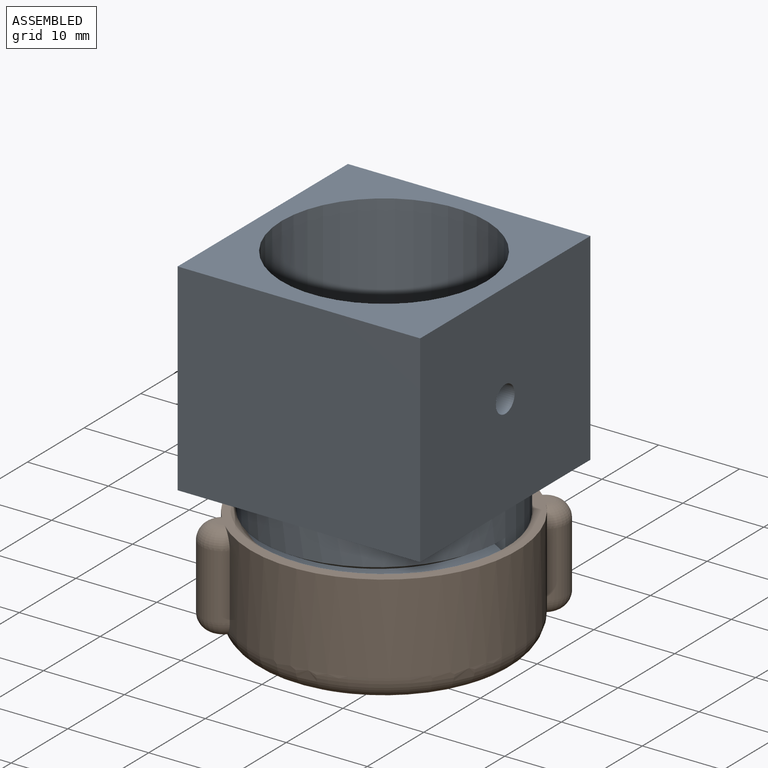
[diagram: assembled view]
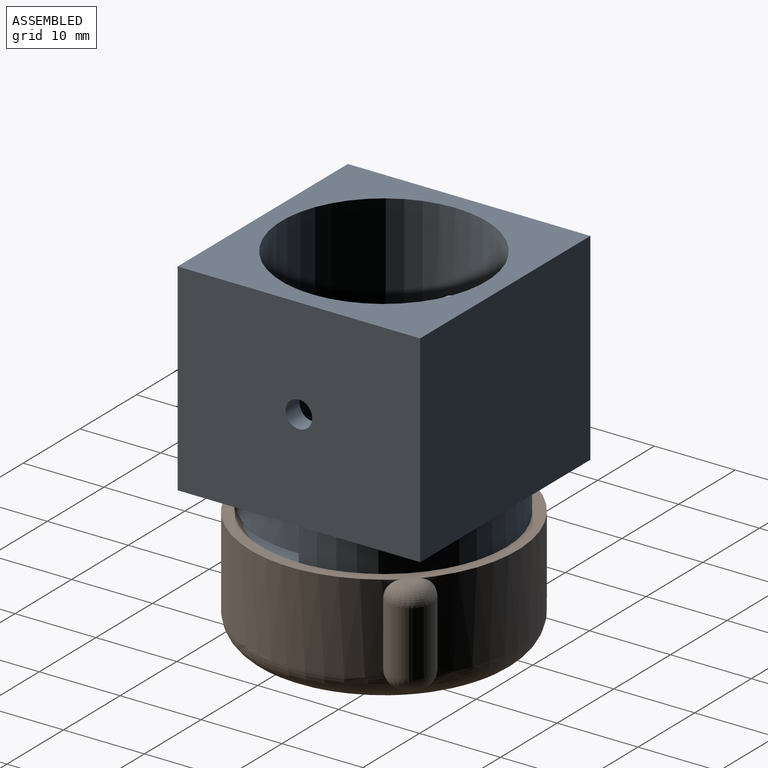
[diagram: assembled view, second angle]
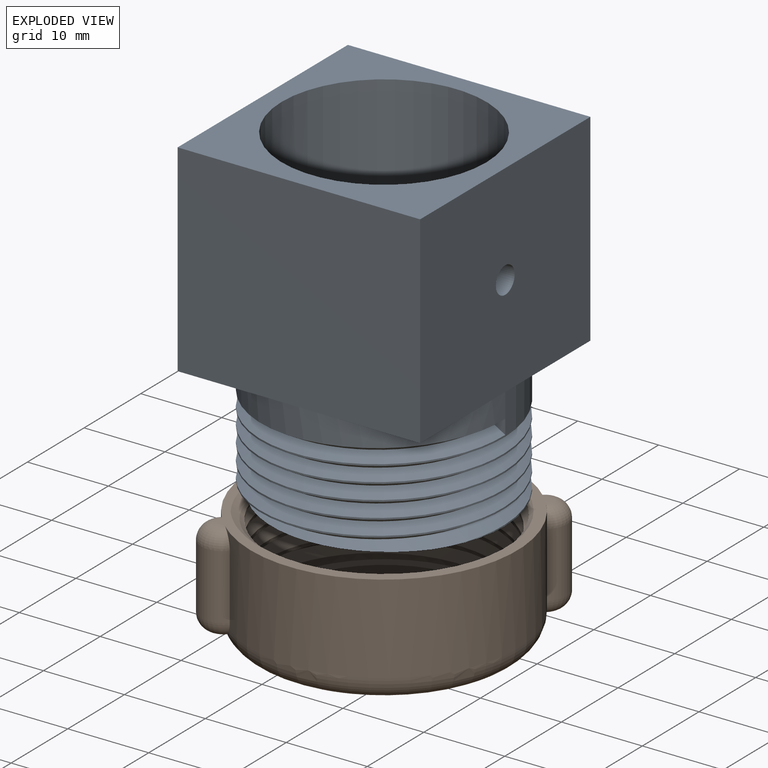
[diagram: exploded view]
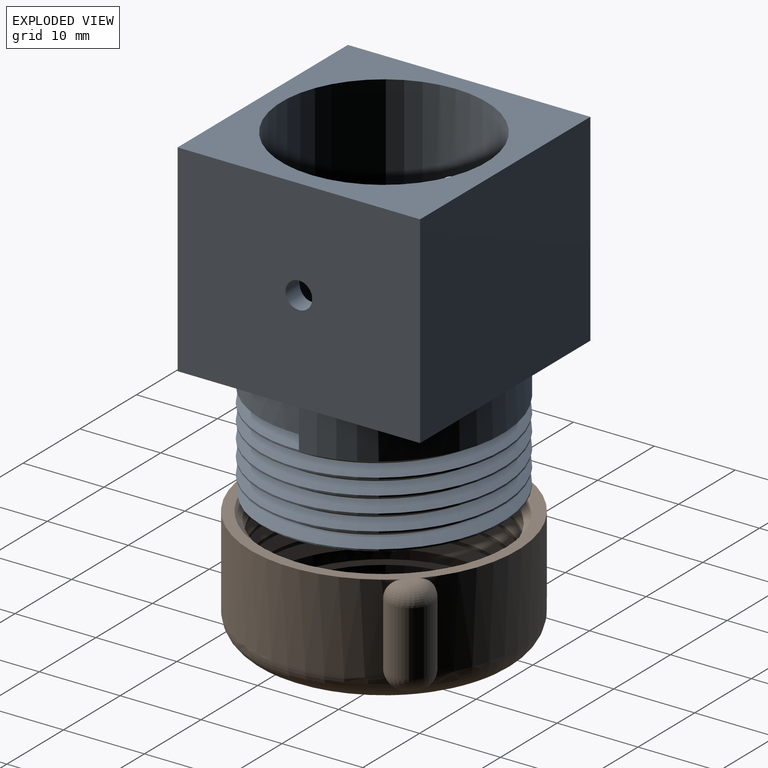
[diagram: exploded view, second angle]
ASSEMBLY  parts=2 mates=3
PART A: 23 faces, bbox 31.3x35.9x42.4 mm
  f0: cylinder r=12.65mm len=40mm, axis (0,0,-1), area 3152.2mm2, adj f16,f17,f21,f22
  f1: cylinder r=15mm len=30mm, axis (0,0,-1), area 377mm2, adj f2,f8,f9,f10,f15,f18,f20
  f2: cylinder r=15mm len=30mm, axis (0,0,-1), area 18.9mm2, adj f1,f3,f19,f20
  f3: cylinder r=15mm len=30mm, axis (0,0,-1), area 18.8mm2, adj f2,f4,f19,f20
  f4: cylinder r=15mm len=30mm, axis (0,0,-1), area 18.8mm2, adj f3,f5,f19,f20
  f5: cylinder r=15mm len=30mm, axis (0,0,-1), area 18.9mm2, adj f4,f6,f19,f20
  f6: cylinder r=15mm len=30mm, axis (0,0,-1), area 18.8mm2, adj f5,f7,f19,f20
  f7: cylinder r=15mm len=8.76mm, axis (0,0,-1), area 0.9mm2, adj f6,f17,f19
  f8: plane 15x15mm, normal (0,0,1), area 48.3mm2, adj f1,f13,f14
  f9: plane 15x15mm, normal (0,0,1), area 48.3mm2, adj f1,f12,f13
  f10: plane 15x15mm, normal (0,0,1), area 48.3mm2, adj f1,f11,f12
  f11: plane 30x25mm, normal (0,1,0), area 750mm2, adj f10,f12,f14,f15,f16
  f12: plane 30x25mm, normal (-1,0,0), area 671.5mm2, adj f9,f10,f11,f13,f16,f21
  f13: plane 30x25mm, normal (0,-1,0), area 750mm2, adj f8,f9,f12,f14,f16
  f14: plane 30x25mm, normal (1,0,0), area 741.4mm2, adj f8,f11,f13,f15,f16,f22
  f15: plane 15x15mm, normal (0,0,1), area 48.3mm2, adj f1,f11,f14
  f16: plane 30x30mm, normal (0,0,-1), area 397.3mm2, adj f0,f11,f12,f13,f14
  f17: plane 29.89x29.88mm, normal (0,0,1), area 140.3mm2, adj f0,f7,f19,f20
  f18: plane 1.8x1.56mm, normal (0,1,0), area 1.4mm2, adj f1,f19,f20
  f19: bspline ~34.64x30mm, area 855.9mm2, adj f2,f3,f4,f5,f6,f7,f17,f18
  f20: bspline ~34.64x30mm, area 929.8mm2, adj f1,f2,f3,f4,f5,f6,f17,f18
  f21: cone r=1.65mm half-angle=45deg, axis (-1,0,0), area 84.3mm2, adj f0,f12
  f22: cylinder r=1.65mm len=3.3mm, axis (-1,0,0), area 24.6mm2, adj f0,f14
PART B: 20 faces, bbox 36x36.2x15.2 mm
  f0: cylinder r=16.5mm len=27.76mm, axis (0,0,-1), area 511.5mm2, adj f2,f3,f6,f14,f16,f17,f18,f19
  f1: plane 1.41x1.4mm, normal (0,0,-1), area 1.2mm2, adj f14,f16
  f2: cylinder r=2.76mm len=8mm, axis (0,0,-1), area 73mm2, adj f0,f5,f17,f19
  f3: cylinder r=2.76mm len=8mm, axis (0,0,-1), area 73mm2, adj f0,f5,f16,f18
  f4: cylinder r=14.15mm len=28.3mm, axis (0,0,-1), area 244.8mm2, adj f8,f9,f10,f13,f15
  f5: cylinder r=16.5mm len=27.76mm, axis (0,0,-1), area 511.5mm2, adj f2,f3,f6,f14,f16,f17,f18,f19
  f6: plane 33.28x33.28mm, normal (0,0,1), area 132mm2, adj f0,f5,f9,f10,f15,f18,f19
  f7: plane 1.41x1.4mm, normal (0,0,-1), area 1.2mm2, adj f14,f17
  f8: plane 1.6x1.39mm, normal (0,1,0), area 1.1mm2, adj f4,f9,f10
  f9: bspline ~35.88x31.07mm, area 782.4mm2, adj f4,f6,f8,f10,f15
  f10: bspline ~35.88x31.07mm, area 838.8mm2, adj f4,f6,f8,f9,f15
  f11: cylinder r=12.8mm len=25.6mm, axis (0,0,1), area 160.8mm2, adj f12,f13
  f12: plane 27x27mm, normal (0,0,-1), area 57.8mm2, adj f11,f14
  f13: plane 28.3x28.3mm, normal (0,0,1), area 114.3mm2, adj f4,f11
  f14: torus R=13.5mm, axis (0,0,-1), area 449.7mm2, adj f0,f1,f5,f7,f12,f16,f17
  f15: cone r=14.15mm half-angle=45deg, axis (0,0,1), area 64mm2, adj f4,f6,f9,f10
  f16: torus R=0.76mm, axis (0,0,1), area 21.2mm2, adj f0,f1,f3,f5,f14
  f17: torus R=0.76mm, axis (0,0,1), area 21.2mm2, adj f0,f2,f5,f7,f14
  f18: torus R=0.76mm, axis (0,0,1), area 20.8mm2, adj f0,f3,f5,f6
  f19: torus R=0.76mm, axis (0,0,1), area 20.8mm2, adj f0,f2,f5,f6
PLACE A rot(axis=(1,0,0),180deg) t=(-125.33,54.87,71.44)mm
PLACE B rot(axis=(0,0,-1),0.1deg) t=(-125.33,54.87,-11.36)mm
MATE cylindrical A.f0 <-> B.f0  axis (0,0,1) through (-125.33,54.87,31.44)mm
MATE parallel B.f0 <-> B.f0  axis (0,0,1) through (-125.33,54.87,42.44)mm
MATE revolute B.f0 <-> A.f0  axis (0,0,-1) through (-125.33,54.87,31.44)mm
